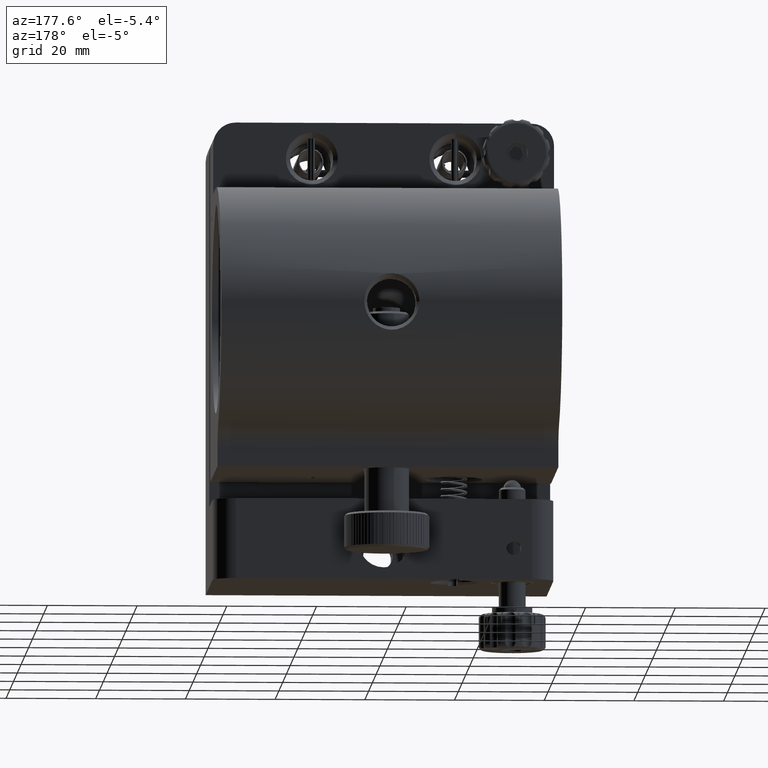
[diagram: clean part render]
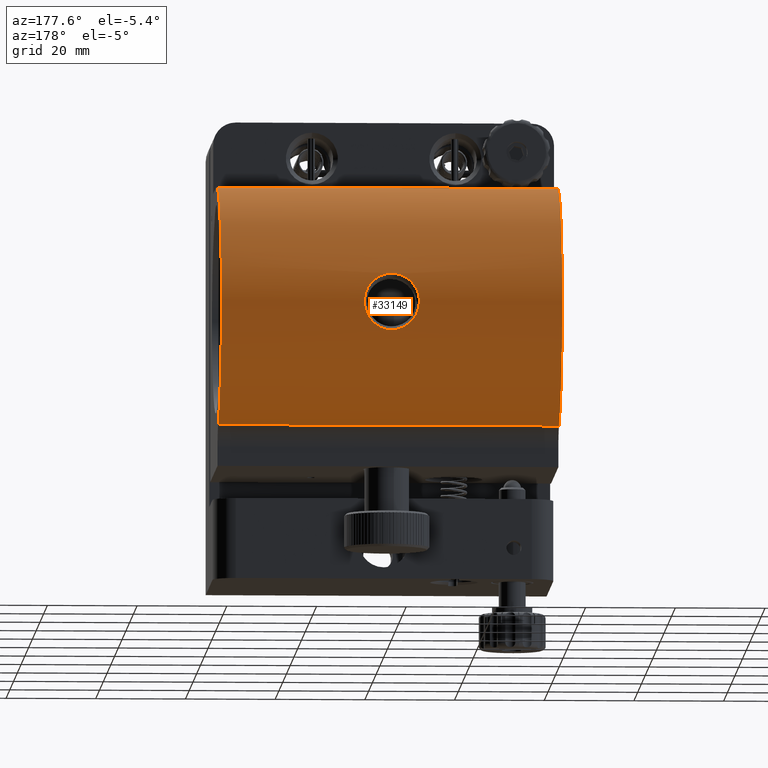
[diagram: same view with one face highlighted and labeled with its STEP entity id]
A machine part, auxiliary view. The second image highlights one B-rep face of the part: STEP entity #33149.
In plain terms, the highlighted cylindrical surface (partial cylindrical patch) has radius 28 mm, axis along (-1, -0, -0).
Its self-contained STEP definition (entity closure, byte-faithful):
#1181 = CARTESIAN_POINT ( 'NONE',  ( -37.99999999999999300, 55.99999999999979400, 27.99999999999990400 ) ) ;
#1392 = CARTESIAN_POINT ( 'NONE',  ( 3.243629653380820000, 83.48133037877680400, 5.365613183768035200 ) ) ;
#1690 = CARTESIAN_POINT ( 'NONE',  ( 3.743405247225039200, 83.54653296612438900, -5.024133250391980900 ) ) ;
#1759 = CARTESIAN_POINT ( 'NONE',  ( -1.389176824721134700, 83.31420475158942900, 6.159218269681018000 ) ) ;
#1860 = CARTESIAN_POINT ( 'NONE',  ( -6.091608363086249000, 83.99077088612732200, -0.8247854393280130700 ) ) ;
#2042 = CARTESIAN_POINT ( 'NONE',  ( 2.159521212120573800, 83.36825865846351700, -5.914833379730422900 ) ) ;
#2392 = CARTESIAN_POINT ( 'NONE',  ( 6.131748926908001000, 83.99999922025755000, 0.006607992519576321200 ) ) ;
#2531 = VECTOR ( 'NONE', #27906, 1000.000000000000000 ) ;
#3904 = B_SPLINE_CURVE_WITH_KNOTS ( 'NONE', 3,
 ( #10167, #48384, #1860, #31560, #23486, #52894, #44825, #14484, #44279, #44104, #22930, #19163, #49120, #36416, #53444, #9984, #14113, #40538, #18605, #23302, #2042, #35682, #18975, #1690, #10541, #36237, #18425, #31746, #27787, #6368, #32122, #53260 ),
 .UNSPECIFIED., .F., .F.,
 ( 4, 2, 2, 2, 2, 2, 2, 2, 2, 2, 2, 2, 2, 2, 2, 4 ),
 ( 0.0000000000000000000, 0.03125000000000001400, 0.06250000000000002800, 0.1250000000000000600, 0.1562500000000000600, 0.1718750000000001100, 0.1875000000000001400, 0.2500000000000002200, 0.2812500000000002200, 0.2968750000000002200, 0.3125000000000002800, 0.3437500000000002200, 0.3750000000000001700, 0.4062500000000001100, 0.4375000000000000600, 0.5000000000000000000 ),
 .UNSPECIFIED. ) ;
#4553 = EDGE_LOOP ( 'NONE', ( #40956, #25079, #52234, #6246 ) ) ;
#5321 = CARTESIAN_POINT ( 'NONE',  ( 1.582447328561504200, 83.31593584649343100, 6.160405067730834200 ) ) ;
#5502 = CARTESIAN_POINT ( 'NONE',  ( 4.902204278729639600, 83.73508929113839400, 3.887979633826009500 ) ) ;
#5697 = CARTESIAN_POINT ( 'NONE',  ( -5.975135846611561200, 83.96316785994442000, 1.637056560376621000 ) ) ;
#6246 = ORIENTED_EDGE ( 'NONE', *, *, #10617, .F. ) ;
#6368 = CARTESIAN_POINT ( 'NONE',  ( 5.973732727639681900, 83.96344776100710300, -1.633469704416410200 ) ) ;
#6758 = CARTESIAN_POINT ( 'NONE',  ( 38.00000000000000700, 55.99999999999979400, 27.99999999999990400 ) ) ;
#7552 = DIRECTION ( 'NONE',  ( 1.000000000000000000, 0.0000000000000000000, 0.0000000000000000000 ) ) ;
#7633 = EDGE_CURVE ( 'NONE', #21830, #17199, #35464, .T. ) ;
#9873 = CARTESIAN_POINT ( 'NONE',  ( 0.7980807202635793500, 83.27687617770270400, 6.322343393602417400 ) ) ;
#9984 = CARTESIAN_POINT ( 'NONE',  ( 0.4018959311760176300, 83.27685418300428900, -6.322438286372481300 ) ) ;
#10056 = CARTESIAN_POINT ( 'NONE',  ( 2.535441571572751900, 83.40269462142593700, 5.753195750657070600 ) ) ;
#10167 = CARTESIAN_POINT ( 'NONE',  ( -6.131752276060040300, 83.99999999999980100, -1.748090863545192300E-013 ) ) ;
#10426 = CARTESIAN_POINT ( 'NONE',  ( -37.99999999999999300, 55.99999999999979400, -9.584347204771859200E-014 ) ) ;
#10464 = CARTESIAN_POINT ( 'NONE',  ( 38.00000000000000700, 55.99999999999979400, -9.584347204771859200E-014 ) ) ;
#10541 = CARTESIAN_POINT ( 'NONE',  ( 4.051751842081933400, 83.59340847182842500, -4.763549747243200000 ) ) ;
#10617 = EDGE_CURVE ( 'NONE', #18140, #17199, #38150, .T. ) ;
#12970 = CARTESIAN_POINT ( 'NONE',  ( 6.092209349748423500, 83.99058927202136700, 0.8307330661512870600 ) ) ;
#13824 = CARTESIAN_POINT ( 'NONE',  ( -4.055267467222162900, 83.59399690683763100, 4.760160863860467600 ) ) ;
#14113 = CARTESIAN_POINT ( 'NONE',  ( 0.7980732263529142200, 83.28635106429354100, -6.281878644552842900 ) ) ;
#14181 = DIRECTION ( 'NONE',  ( 1.000000000000000000, 0.0000000000000000000, 0.0000000000000000000 ) ) ;
#14196 = AXIS2_PLACEMENT_3D ( 'NONE', #10426, #14181, #52583 ) ;
#14484 = CARTESIAN_POINT ( 'NONE',  ( -4.048990435230683400, 83.59291724786086800, -4.766443399832820800 ) ) ;
#14559 = CARTESIAN_POINT ( 'NONE',  ( -6.131752276060040300, 83.99999999999980100, -1.748090863545192300E-013 ) ) ;
#14766 = DIRECTION ( 'NONE',  ( -1.000000000000000000, -0.0000000000000000000, -0.0000000000000000000 ) ) ;
#16748 = EDGE_CURVE ( 'NONE', #32520, #18140, #21090, .T. ) ;
#17199 = VERTEX_POINT ( 'NONE', #1181 ) ;
#18140 = VERTEX_POINT ( 'NONE', #6758 ) ;
#18425 = CARTESIAN_POINT ( 'NONE',  ( 4.870173540701919100, 83.73448868576444700, -3.862244400869338200 ) ) ;
#18605 = CARTESIAN_POINT ( 'NONE',  ( 1.579430570523621100, 83.32550909149084400, -6.109047941366729800 ) ) ;
#18675 = CARTESIAN_POINT ( 'NONE',  ( 3.072075562706392500, 83.46051866699272600, 5.470806290038301400 ) ) ;
#18955 = VERTEX_POINT ( 'NONE', #2392 ) ;
#18975 = CARTESIAN_POINT ( 'NONE',  ( 3.081250147615342400, 83.45986348210416800, -5.478073650077432100 ) ) ;
#19163 = CARTESIAN_POINT ( 'NONE',  ( -2.718510192674235900, 83.42093943498618100, -5.665853050507869200 ) ) ;
#20292 = ORIENTED_EDGE ( 'NONE', *, *, #34551, .T. ) ;
#20555 = CYLINDRICAL_SURFACE ( 'NONE', #47922, 27.99999999999999600 ) ;
#20815 = CARTESIAN_POINT ( 'NONE',  ( 5.934123128896670700, 83.95497129755037200, 1.637920930731661600 ) ) ;
#21090 = CIRCLE ( 'NONE', #23425, 27.99999999999999600 ) ;
#21830 = VERTEX_POINT ( 'NONE', #26046 ) ;
#22930 = CARTESIAN_POINT ( 'NONE',  ( -3.073236035063647600, 83.46033735208747800, -5.471716622475867100 ) ) ;
#23001 = CARTESIAN_POINT ( 'NONE',  ( -3.746893608220561900, 83.54708285297630300, 5.021132585009708800 ) ) ;
#23302 = CARTESIAN_POINT ( 'NONE',  ( 1.965832535759992600, 83.35253521448822800, -5.986879921899805400 ) ) ;
#23425 = AXIS2_PLACEMENT_3D ( 'NONE', #28244, #7552, #32571 ) ;
#23486 = CARTESIAN_POINT ( 'NONE',  ( -5.814069395317333500, 83.92888538148466200, -2.032531764481353900 ) ) ;
#25079 = ORIENTED_EDGE ( 'NONE', *, *, #50000, .T. ) ;
#26003 = LINE ( 'NONE', #53637, #36053 ) ;
#26046 = CARTESIAN_POINT ( 'NONE',  ( -37.99999999999999300, 66.18181818181804500, -26.08314740426086300 ) ) ;
#26922 = CARTESIAN_POINT ( 'NONE',  ( -0.8020151957228004400, 83.28640839443372100, 6.281633589561216100 ) ) ;
#27109 = CARTESIAN_POINT ( 'NONE',  ( -1.583671240149476400, 83.32570111538537100, 6.108191089801295900 ) ) ;
#27787 = CARTESIAN_POINT ( 'NONE',  ( 5.499575882274676500, 83.86116761435126000, -2.812649579039381700 ) ) ;
#27906 = DIRECTION ( 'NONE',  ( -1.000000000000000000, -0.0000000000000000000, -0.0000000000000000000 ) ) ;
#28019 = CARTESIAN_POINT ( 'NONE',  ( 38.00000000000000700, 66.18181818181804500, -26.08314740426086300 ) ) ;
#28157 = CARTESIAN_POINT ( 'NONE',  ( -6.131752276060040300, 83.99999999999980100, -1.748090863545192300E-013 ) ) ;
#28244 = CARTESIAN_POINT ( 'NONE',  ( 38.00000000000000700, 55.99999999999979400, -9.584347204771859200E-014 ) ) ;
#28644 = CARTESIAN_POINT ( 'NONE',  ( 38.00000000000000700, 55.99999999999979400, 27.99999999999990400 ) ) ;
#29300 = FACE_OUTER_BOUND ( 'NONE', #4553, .T. ) ;
#29701 = EDGE_LOOP ( 'NONE', ( #48514, #20292 ) ) ;
#31072 = CARTESIAN_POINT ( 'NONE',  ( -2.730733955293319000, 83.42036218154397900, 5.670200744710002500 ) ) ;
#31266 = CARTESIAN_POINT ( 'NONE',  ( 5.342921004288947500, 83.82673648497399200, 3.207030123834930800 ) ) ;
#31448 = CARTESIAN_POINT ( 'NONE',  ( -1.970207815863964000, 83.35281203023070900, 5.985617251024971000 ) ) ;
#31560 = CARTESIAN_POINT ( 'NONE',  ( -5.933252130300165700, 83.95527819307683600, -1.632772785258791000 ) ) ;
#31746 = CARTESIAN_POINT ( 'NONE',  ( 5.311038245023673300, 83.82115522008088200, -3.178382716573141300 ) ) ;
#32122 = CARTESIAN_POINT ( 'NONE',  ( 6.131772956170185500, 84.00019498648745800, -0.8229108465208462300 ) ) ;
#32520 = VERTEX_POINT ( 'NONE', #28019 ) ;
#32571 = DIRECTION ( 'NONE',  ( 0.0000000000000000000, 0.0000000000000000000, -1.000000000000000000 ) ) ;
#33149 = ADVANCED_FACE ( 'NONE', ( #40710, #29300 ), #20555, .T. ) ;
#34551 = EDGE_CURVE ( 'NONE', #18955, #47565, #38311, .T. ) ;
#34557 = CARTESIAN_POINT ( 'NONE',  ( 6.131736912276909200, 83.99990133714264600, 0.4213674120397877800 ) ) ;
#35388 = CARTESIAN_POINT ( 'NONE',  ( -6.132491279341644000, 83.99999999999978700, 0.8292308344536657400 ) ) ;
#35464 = CIRCLE ( 'NONE', #14196, 27.99999999999999600 ) ;
#35570 = CARTESIAN_POINT ( 'NONE',  ( 3.740713435244874800, 83.54628769462635800, 5.025468251431009400 ) ) ;
#35682 = CARTESIAN_POINT ( 'NONE',  ( 2.726663832564829400, 83.41993899754183400, -5.672238446792051500 ) ) ;
#35755 = CARTESIAN_POINT ( 'NONE',  ( -5.501961043498903700, 83.86116393077789200, 2.812511717066592100 ) ) ;
#36053 = VECTOR ( 'NONE', #41096, 1000.000000000000000 ) ;
#36237 = CARTESIAN_POINT ( 'NONE',  ( 4.618316260113570800, 83.68793611521672900, -4.179209371078480100 ) ) ;
#36416 = CARTESIAN_POINT ( 'NONE',  ( -1.585108213186972900, 83.31588813121396700, -6.160575905356922500 ) ) ;
#38150 = LINE ( 'NONE', #28644, #2531 ) ;
#38311 = B_SPLINE_CURVE_WITH_KNOTS ( 'NONE', 3,
 ( #38651, #34557, #12970, #20815, #39683, #31266, #5502, #43992, #35570, #1392, #18675, #40056, #10056, #5321, #9873, #48834, #26922, #1759, #27109, #31448, #48655, #31072, #52406, #23001, #13824, #44354, #40240, #52590, #35755, #5697, #35388, #14559 ),
 .UNSPECIFIED., .F., .F.,
 ( 4, 2, 2, 2, 2, 2, 2, 2, 2, 2, 2, 2, 2, 2, 2, 4 ),
 ( 0.5000000000000000000, 0.5312500000000000000, 0.5625000000000000000, 0.6250000000000000000, 0.6562500000000000000, 0.6718750000000000000, 0.6875000000000000000, 0.7500000000000002200, 0.7812500000000002200, 0.7968750000000002200, 0.8125000000000002200, 0.8437500000000002200, 0.8750000000000002200, 0.9062500000000002200, 0.9375000000000001100, 1.000000000000000000 ),
 .UNSPECIFIED. ) ;
#38651 = CARTESIAN_POINT ( 'NONE',  ( 6.131748926908001000, 83.99999922025755000, 0.006607992519576321200 ) ) ;
#39683 = CARTESIAN_POINT ( 'NONE',  ( 5.814774894384661300, 83.92849539124416900, 2.037700072652277600 ) ) ;
#40056 = CARTESIAN_POINT ( 'NONE',  ( 2.717248387918061300, 83.42113405716233400, 5.664910762095868100 ) ) ;
#40240 = CARTESIAN_POINT ( 'NONE',  ( -4.873804427749643500, 83.73501289812954000, 3.858405572570190700 ) ) ;
#40538 = CARTESIAN_POINT ( 'NONE',  ( 1.385007671662860300, 83.31405059425256400, -6.159900856490691200 ) ) ;
#40710 = FACE_BOUND ( 'NONE', #29701, .T. ) ;
#40956 = ORIENTED_EDGE ( 'NONE', *, *, #16748, .F. ) ;
#41096 = DIRECTION ( 'NONE',  ( -1.000000000000000000, -0.0000000000000000000, -0.0000000000000000000 ) ) ;
#43992 = CARTESIAN_POINT ( 'NONE',  ( 4.048664636275285400, 83.59299964372608800, 4.765948128802787800 ) ) ;
#44104 = CARTESIAN_POINT ( 'NONE',  ( -3.244704081124941000, 83.48116013382347900, -5.366486357872556600 ) ) ;
#44279 = CARTESIAN_POINT ( 'NONE',  ( -3.741423593908575400, 83.54616141535729000, -5.026165914435840600 ) ) ;
#44354 = CARTESIAN_POINT ( 'NONE',  ( -4.622027813131273500, 83.68855321195157200, 4.175142844660492800 ) ) ;
#44825 = CARTESIAN_POINT ( 'NONE',  ( -4.900952457596032400, 83.73515404704632200, -3.887607196087200700 ) ) ;
#47297 = EDGE_CURVE ( 'NONE', #47565, #18955, #3904, .T. ) ;
#47565 = VERTEX_POINT ( 'NONE', #28157 ) ;
#47922 = AXIS2_PLACEMENT_3D ( 'NONE', #10464, #14766, #48128 ) ;
#48128 = DIRECTION ( 'NONE',  ( 0.0000000000000000000, 0.0000000000000000000, 1.000000000000000000 ) ) ;
#48384 = CARTESIAN_POINT ( 'NONE',  ( -6.131382372875195100, 83.99999999999981500, -0.4150659872179427400 ) ) ;
#48514 = ORIENTED_EDGE ( 'NONE', *, *, #47297, .T. ) ;
#48655 = CARTESIAN_POINT ( 'NONE',  ( -2.164232035651058700, 83.36860769018078100, 5.913220168745341200 ) ) ;
#48834 = CARTESIAN_POINT ( 'NONE',  ( -0.4056695994395069800, 83.27686970427984600, 6.322371322203410100 ) ) ;
#49120 = CARTESIAN_POINT ( 'NONE',  ( -2.536347602808982900, 83.40246395436503200, -5.754291591706415700 ) ) ;
#50000 = EDGE_CURVE ( 'NONE', #32520, #21830, #26003, .T. ) ;
#52234 = ORIENTED_EDGE ( 'NONE', *, *, #7633, .T. ) ;
#52406 = CARTESIAN_POINT ( 'NONE',  ( -3.085033064450040100, 83.46033362850047900, 5.475730376528114000 ) ) ;
#52583 = DIRECTION ( 'NONE',  ( 0.0000000000000000000, 0.0000000000000000000, -1.000000000000000000 ) ) ;
#52590 = CARTESIAN_POINT ( 'NONE',  ( -5.314150540313998600, 83.82140018513928200, 3.176149517920329000 ) ) ;
#52894 = CARTESIAN_POINT ( 'NONE',  ( -5.341911942470646000, 83.82705530148472000, -3.204729216498923200 ) ) ;
#53260 = CARTESIAN_POINT ( 'NONE',  ( 6.131748926908001000, 83.99999922025755000, 0.006607992519576321200 ) ) ;
#53444 = CARTESIAN_POINT ( 'NONE',  ( -0.8012989492654717400, 83.27690611871509000, -6.322214217685824700 ) ) ;
#53637 = CARTESIAN_POINT ( 'NONE',  ( 38.00000000000000700, 66.18181818181804500, -26.08314740426086300 ) ) ;